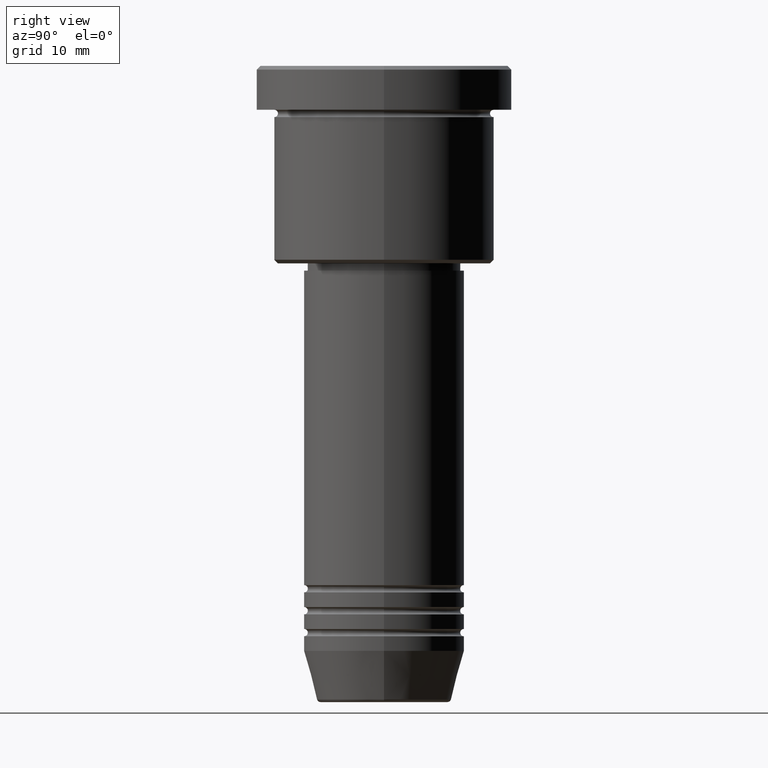
[diagram: clean part render]
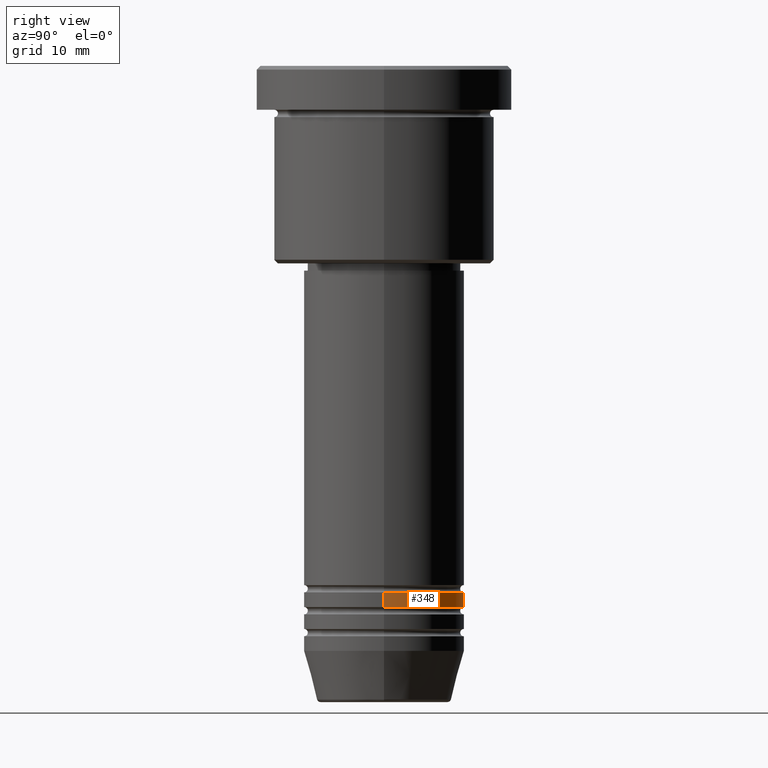
[diagram: same view with one face highlighted and labeled with its STEP entity id]
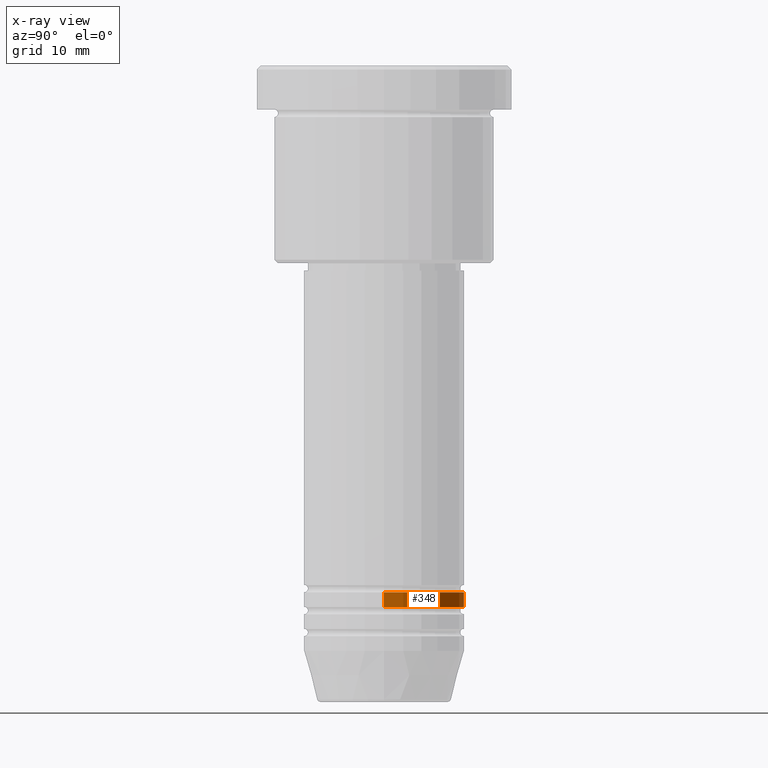
[diagram: x-ray of the same camera — body ghosted, the highlighted face saturated]
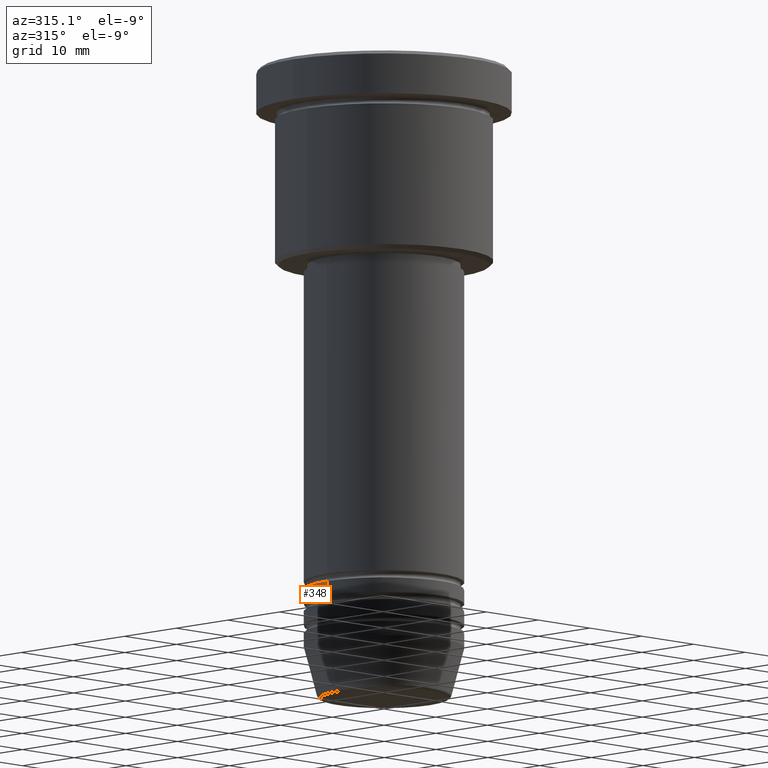
[diagram: same view with one face highlighted and labeled with its STEP entity id]
A machine part, right view. The second image highlights one B-rep face of the part: STEP entity #348.
The next image is the same camera in x-ray: the body ghosted, the highlighted face saturated — about 0% of this face is hidden behind the body in this view.
A second angle (auxiliary view) of the same face is appended — the face is thin or edge-on in the first view.
In plain terms, the highlighted cylindrical surface (partial cylindrical patch) has radius 11 mm, axis along (-0, -0, 1).
Its self-contained STEP definition (entity closure, byte-faithful):
#43 = CARTESIAN_POINT ( 'NONE',  ( -11.00000000000000000, 1.347111479062088405E-15, 0.000000000000000000 ) ) ;
#59 = ORIENTED_EDGE ( 'NONE', *, *, #247, .T. ) ;
#153 = VERTEX_POINT ( 'NONE', #393 ) ;
#186 = VERTEX_POINT ( 'NONE', #667 ) ;
#247 = EDGE_CURVE ( 'NONE', #153, #274, #783, .T. ) ;
#274 = VERTEX_POINT ( 'NONE', #422 ) ;
#277 = EDGE_LOOP ( 'NONE', ( #439, #59, #350, #466 ) ) ;
#321 = DIRECTION ( 'NONE',  ( -0.000000000000000000, -0.000000000000000000, 1.000000000000000000 ) ) ;
#348 = ADVANCED_FACE ( 'NONE', ( #1071 ), #906, .T. ) ;
#350 = ORIENTED_EDGE ( 'NONE', *, *, #701, .F. ) ;
#388 = CARTESIAN_POINT ( 'NONE',  ( 0.000000000000000000, 0.000000000000000000, -73.99999999999997158 ) ) ;
#393 = CARTESIAN_POINT ( 'NONE',  ( -11.00000000000000000, 1.347111479062088405E-15, -73.99999999999997158 ) ) ;
#401 = DIRECTION ( 'NONE',  ( -0.000000000000000000, -0.000000000000000000, 1.000000000000000000 ) ) ;
#408 = CARTESIAN_POINT ( 'NONE',  ( 0.000000000000000000, 0.000000000000000000, -71.99999999999997158 ) ) ;
#422 = CARTESIAN_POINT ( 'NONE',  ( -11.00000000000000000, 1.347111479062088405E-15, -71.99999999999997158 ) ) ;
#439 = ORIENTED_EDGE ( 'NONE', *, *, #1140, .T. ) ;
#466 = ORIENTED_EDGE ( 'NONE', *, *, #837, .F. ) ;
#570 = AXIS2_PLACEMENT_3D ( 'NONE', #388, #1026, #571 ) ;
#571 = DIRECTION ( 'NONE',  ( 1.000000000000000000, 0.000000000000000000, 0.000000000000000000 ) ) ;
#603 = DIRECTION ( 'NONE',  ( 1.000000000000000000, 0.000000000000000000, 0.000000000000000000 ) ) ;
#612 = CARTESIAN_POINT ( 'NONE',  ( 11.00000000000000000, 0.000000000000000000, 0.000000000000000000 ) ) ;
#659 = CIRCLE ( 'NONE', #966, 11.00000000000000000 ) ;
#667 = CARTESIAN_POINT ( 'NONE',  ( 11.00000000000000000, 0.000000000000000000, -71.99999999999997158 ) ) ;
#683 = CARTESIAN_POINT ( 'NONE',  ( 11.00000000000000000, 0.000000000000000000, -73.99999999999997158 ) ) ;
#699 = LINE ( 'NONE', #612, #848 ) ;
#701 = EDGE_CURVE ( 'NONE', #186, #274, #659, .T. ) ;
#730 = VERTEX_POINT ( 'NONE', #683 ) ;
#783 = LINE ( 'NONE', #43, #866 ) ;
#837 = EDGE_CURVE ( 'NONE', #730, #186, #699, .T. ) ;
#848 = VECTOR ( 'NONE', #985, 1000.000000000000000 ) ;
#866 = VECTOR ( 'NONE', #401, 1000.000000000000000 ) ;
#896 = CIRCLE ( 'NONE', #570, 11.00000000000000000 ) ;
#906 = CYLINDRICAL_SURFACE ( 'NONE', #997, 11.00000000000000000 ) ;
#966 = AXIS2_PLACEMENT_3D ( 'NONE', #408, #321, #1054 ) ;
#985 = DIRECTION ( 'NONE',  ( -0.000000000000000000, -0.000000000000000000, 1.000000000000000000 ) ) ;
#990 = CARTESIAN_POINT ( 'NONE',  ( 0.000000000000000000, 0.000000000000000000, 0.000000000000000000 ) ) ;
#997 = AXIS2_PLACEMENT_3D ( 'NONE', #990, #1182, #603 ) ;
#1026 = DIRECTION ( 'NONE',  ( -0.000000000000000000, -0.000000000000000000, 1.000000000000000000 ) ) ;
#1054 = DIRECTION ( 'NONE',  ( 1.000000000000000000, 0.000000000000000000, 0.000000000000000000 ) ) ;
#1071 = FACE_OUTER_BOUND ( 'NONE', #277, .T. ) ;
#1140 = EDGE_CURVE ( 'NONE', #730, #153, #896, .T. ) ;
#1182 = DIRECTION ( 'NONE',  ( -0.000000000000000000, -0.000000000000000000, 1.000000000000000000 ) ) ;